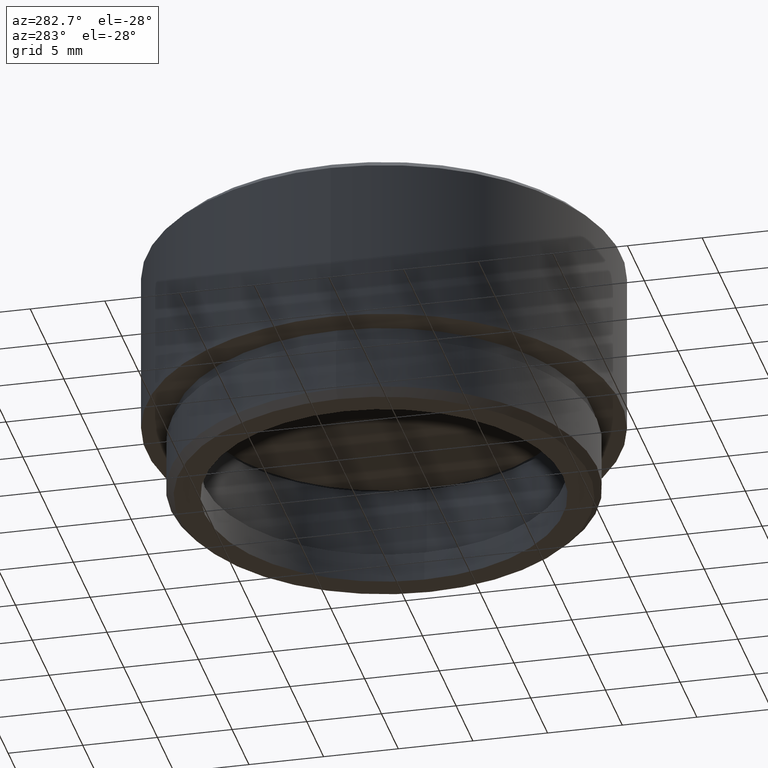
[diagram: clean part render]
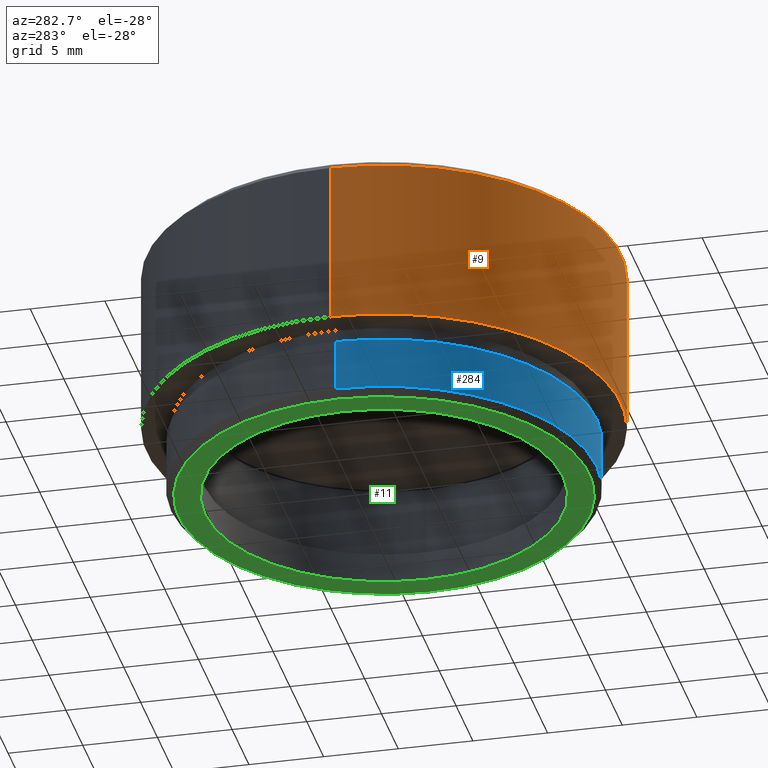
[diagram: same view with three faces highlighted in distinct colors, each labeled with its STEP entity id]
A machine part, auxiliary view with three faces highlighted in distinct colors.
Their STEP definitions:

[orange] entity #9 — the highlighted cylindrical surface (partial cylindrical patch) has radius 15.878 mm, axis along (-0, -0, -1).
#9 = ADVANCED_FACE ( 'NONE', ( #1155 ), #1298, .T. ) ;
#14 = CARTESIAN_POINT ( 'NONE',  ( 15.87800000000000011, 1.944494187686167431E-15, 16.50000000000000000 ) ) ;
#64 = VERTEX_POINT ( 'NONE', #1305 ) ;
#89 = CIRCLE ( 'NONE', #967, 15.87800000000000011 ) ;
#337 = CARTESIAN_POINT ( 'NONE',  ( -15.87800000000000011, 0.000000000000000000, 5.000000000000000000 ) ) ;
#341 = VERTEX_POINT ( 'NONE', #1650 ) ;
#372 = VERTEX_POINT ( 'NONE', #337 ) ;
#561 = ORIENTED_EDGE ( 'NONE', *, *, #984, .F. ) ;
#600 = VERTEX_POINT ( 'NONE', #956 ) ;
#609 = DIRECTION ( 'NONE',  ( -0.000000000000000000, -0.000000000000000000, -1.000000000000000000 ) ) ;
#648 = DIRECTION ( 'NONE',  ( -1.000000000000000000, 0.000000000000000000, 0.000000000000000000 ) ) ;
#672 = DIRECTION ( 'NONE',  ( -0.000000000000000000, -0.000000000000000000, -1.000000000000000000 ) ) ;
#699 = VECTOR ( 'NONE', #672, 1000.000000000000000 ) ;
#730 = EDGE_CURVE ( 'NONE', #341, #600, #1667, .T. ) ;
#738 = CARTESIAN_POINT ( 'NONE',  ( 0.000000000000000000, 0.000000000000000000, 16.50000000000000000 ) ) ;
#836 = ORIENTED_EDGE ( 'NONE', *, *, #1540, .T. ) ;
#878 = ORIENTED_EDGE ( 'NONE', *, *, #730, .T. ) ;
#919 = AXIS2_PLACEMENT_3D ( 'NONE', #1251, #1526, #1657 ) ;
#929 = AXIS2_PLACEMENT_3D ( 'NONE', #738, #609, #1141 ) ;
#956 = CARTESIAN_POINT ( 'NONE',  ( -15.87800000000000011, 0.000000000000000000, 15.99999999999999645 ) ) ;
#967 = AXIS2_PLACEMENT_3D ( 'NONE', #1287, #1028, #648 ) ;
#975 = DIRECTION ( 'NONE',  ( -0.000000000000000000, -0.000000000000000000, -1.000000000000000000 ) ) ;
#984 = EDGE_CURVE ( 'NONE', #64, #372, #89, .T. ) ;
#1028 = DIRECTION ( 'NONE',  ( 0.000000000000000000, 0.000000000000000000, -1.000000000000000000 ) ) ;
#1141 = DIRECTION ( 'NONE',  ( -1.000000000000000000, 0.000000000000000000, 0.000000000000000000 ) ) ;
#1148 = VECTOR ( 'NONE', #975, 1000.000000000000000 ) ;
#1155 = FACE_OUTER_BOUND ( 'NONE', #1163, .T. ) ;
#1163 = EDGE_LOOP ( 'NONE', ( #1492, #878, #836, #561 ) ) ;
#1230 = LINE ( 'NONE', #1624, #1148 ) ;
#1251 = CARTESIAN_POINT ( 'NONE',  ( 0.000000000000000000, 0.000000000000000000, 15.99999999999999645 ) ) ;
#1287 = CARTESIAN_POINT ( 'NONE',  ( 0.000000000000000000, 0.000000000000000000, 5.000000000000000000 ) ) ;
#1298 = CYLINDRICAL_SURFACE ( 'NONE', #929, 15.87800000000000011 ) ;
#1305 = CARTESIAN_POINT ( 'NONE',  ( 15.87800000000000011, 1.944494187686167431E-15, 5.000000000000000000 ) ) ;
#1312 = EDGE_CURVE ( 'NONE', #341, #64, #1333, .T. ) ;
#1333 = LINE ( 'NONE', #14, #699 ) ;
#1492 = ORIENTED_EDGE ( 'NONE', *, *, #1312, .F. ) ;
#1526 = DIRECTION ( 'NONE',  ( 0.000000000000000000, 0.000000000000000000, -1.000000000000000000 ) ) ;
#1540 = EDGE_CURVE ( 'NONE', #600, #372, #1230, .T. ) ;
#1624 = CARTESIAN_POINT ( 'NONE',  ( -15.87800000000000011, 0.000000000000000000, 16.50000000000000000 ) ) ;
#1650 = CARTESIAN_POINT ( 'NONE',  ( 15.87800000000000011, 1.944494187686167431E-15, 15.99999999999999645 ) ) ;
#1657 = DIRECTION ( 'NONE',  ( 1.000000000000000000, 0.000000000000000000, 0.000000000000000000 ) ) ;
#1667 = CIRCLE ( 'NONE', #919, 15.87800000000000011 ) ;

[blue] entity #284 — the highlighted cylindrical surface (partial cylindrical patch) has radius 14.25 mm, axis along (-0, -0, -1).
#28 = DIRECTION ( 'NONE',  ( -1.000000000000000000, 0.000000000000000000, 0.000000000000000000 ) ) ;
#63 = CYLINDRICAL_SURFACE ( 'NONE', #592, 14.25000000000000000 ) ;
#130 = DIRECTION ( 'NONE',  ( -1.000000000000000000, 0.000000000000000000, 0.000000000000000000 ) ) ;
#162 = VECTOR ( 'NONE', #1467, 1000.000000000000000 ) ;
#190 = CARTESIAN_POINT ( 'NONE',  ( 0.000000000000000000, 0.000000000000000000, 0.4999999999999970024 ) ) ;
#210 = LINE ( 'NONE', #879, #301 ) ;
#284 = ADVANCED_FACE ( 'NONE', ( #583 ), #63, .T. ) ;
#301 = VECTOR ( 'NONE', #611, 1000.000000000000000 ) ;
#312 = VERTEX_POINT ( 'NONE', #1381 ) ;
#313 = EDGE_CURVE ( 'NONE', #449, #1035, #1323, .T. ) ;
#355 = EDGE_LOOP ( 'NONE', ( #546, #870, #528, #1317 ) ) ;
#422 = DIRECTION ( 'NONE',  ( 1.000000000000000000, 0.000000000000000000, 0.000000000000000000 ) ) ;
#449 = VERTEX_POINT ( 'NONE', #1665 ) ;
#528 = ORIENTED_EDGE ( 'NONE', *, *, #1094, .T. ) ;
#546 = ORIENTED_EDGE ( 'NONE', *, *, #1243, .F. ) ;
#583 = FACE_OUTER_BOUND ( 'NONE', #355, .T. ) ;
#592 = AXIS2_PLACEMENT_3D ( 'NONE', #1364, #1216, #28 ) ;
#611 = DIRECTION ( 'NONE',  ( -0.000000000000000000, -0.000000000000000000, -1.000000000000000000 ) ) ;
#665 = CARTESIAN_POINT ( 'NONE',  ( 0.000000000000000000, 0.000000000000000000, 4.000000000000000000 ) ) ;
#676 = AXIS2_PLACEMENT_3D ( 'NONE', #665, #786, #130 ) ;
#786 = DIRECTION ( 'NONE',  ( 0.000000000000000000, 0.000000000000000000, -1.000000000000000000 ) ) ;
#788 = AXIS2_PLACEMENT_3D ( 'NONE', #190, #1607, #422 ) ;
#845 = CIRCLE ( 'NONE', #676, 14.25000000000000000 ) ;
#870 = ORIENTED_EDGE ( 'NONE', *, *, #1238, .T. ) ;
#879 = CARTESIAN_POINT ( 'NONE',  ( -14.25000000000000000, 0.000000000000000000, 5.000000000000000000 ) ) ;
#918 = VERTEX_POINT ( 'NONE', #1299 ) ;
#927 = CARTESIAN_POINT ( 'NONE',  ( 14.25000000000000000, 1.745121688784978228E-15, 5.000000000000000000 ) ) ;
#1035 = VERTEX_POINT ( 'NONE', #1306 ) ;
#1094 = EDGE_CURVE ( 'NONE', #918, #449, #210, .T. ) ;
#1216 = DIRECTION ( 'NONE',  ( -0.000000000000000000, -0.000000000000000000, -1.000000000000000000 ) ) ;
#1238 = EDGE_CURVE ( 'NONE', #312, #918, #845, .T. ) ;
#1243 = EDGE_CURVE ( 'NONE', #312, #1035, #1327, .T. ) ;
#1299 = CARTESIAN_POINT ( 'NONE',  ( -14.25000000000000000, 0.000000000000000000, 4.000000000000000000 ) ) ;
#1306 = CARTESIAN_POINT ( 'NONE',  ( 14.25000000000000000, 1.745121688784978228E-15, 0.4999999999999970024 ) ) ;
#1317 = ORIENTED_EDGE ( 'NONE', *, *, #313, .T. ) ;
#1323 = CIRCLE ( 'NONE', #788, 14.25000000000000000 ) ;
#1327 = LINE ( 'NONE', #927, #162 ) ;
#1364 = CARTESIAN_POINT ( 'NONE',  ( 0.000000000000000000, 0.000000000000000000, 5.000000000000000000 ) ) ;
#1381 = CARTESIAN_POINT ( 'NONE',  ( 14.25000000000000000, 1.745121688784978228E-15, 4.000000000000000000 ) ) ;
#1467 = DIRECTION ( 'NONE',  ( -0.000000000000000000, -0.000000000000000000, -1.000000000000000000 ) ) ;
#1607 = DIRECTION ( 'NONE',  ( 0.000000000000000000, 0.000000000000000000, 1.000000000000000000 ) ) ;
#1665 = CARTESIAN_POINT ( 'NONE',  ( -14.25000000000000000, 0.000000000000000000, 0.4999999999999970024 ) ) ;

[green] entity #11 — the highlighted planar face has unit normal (0, 0, 1).
#7 = VERTEX_POINT ( 'NONE', #998 ) ;
#11 = ADVANCED_FACE ( 'NONE', ( #877, #1679 ), #73, .F. ) ;
#62 = CIRCLE ( 'NONE', #463, 13.75000000000000533 ) ;
#73 = PLANE ( 'NONE',  #451 ) ;
#84 = CIRCLE ( 'NONE', #1271, 13.75000000000000533 ) ;
#88 = CARTESIAN_POINT ( 'NONE',  ( -12.00000000000000178, 0.000000000000000000, 0.000000000000000000 ) ) ;
#222 = CARTESIAN_POINT ( 'NONE',  ( 0.000000000000000000, 0.000000000000000000, 0.000000000000000000 ) ) ;
#225 = ORIENTED_EDGE ( 'NONE', *, *, #1669, .T. ) ;
#254 = VERTEX_POINT ( 'NONE', #570 ) ;
#353 = CARTESIAN_POINT ( 'NONE',  ( 0.000000000000000000, 0.000000000000000000, 0.000000000000000000 ) ) ;
#386 = DIRECTION ( 'NONE',  ( 1.000000000000000000, 0.000000000000000000, 0.000000000000000000 ) ) ;
#426 = ORIENTED_EDGE ( 'NONE', *, *, #1664, .T. ) ;
#451 = AXIS2_PLACEMENT_3D ( 'NONE', #885, #488, #593 ) ;
#463 = AXIS2_PLACEMENT_3D ( 'NONE', #353, #1543, #1006 ) ;
#479 = EDGE_LOOP ( 'NONE', ( #426, #225 ) ) ;
#488 = DIRECTION ( 'NONE',  ( 0.000000000000000000, 0.000000000000000000, 1.000000000000000000 ) ) ;
#516 = VERTEX_POINT ( 'NONE', #531 ) ;
#531 = CARTESIAN_POINT ( 'NONE',  ( -13.75000000000000533, 1.714505518806294835E-15, 0.000000000000000000 ) ) ;
#570 = CARTESIAN_POINT ( 'NONE',  ( 13.75000000000000533, 0.000000000000000000, 0.000000000000000000 ) ) ;
#593 = DIRECTION ( 'NONE',  ( 1.000000000000000000, 0.000000000000000000, -0.000000000000000000 ) ) ;
#594 = CARTESIAN_POINT ( 'NONE',  ( 0.000000000000000000, 0.000000000000000000, 0.000000000000000000 ) ) ;
#645 = DIRECTION ( 'NONE',  ( 0.000000000000000000, 0.000000000000000000, 1.000000000000000000 ) ) ;
#785 = CIRCLE ( 'NONE', #1002, 12.00000000000000178 ) ;
#840 = AXIS2_PLACEMENT_3D ( 'NONE', #1311, #645, #386 ) ;
#866 = EDGE_CURVE ( 'NONE', #516, #254, #62, .T. ) ;
#877 = FACE_OUTER_BOUND ( 'NONE', #1027, .T. ) ;
#885 = CARTESIAN_POINT ( 'NONE',  ( 0.000000000000000000, 0.000000000000000000, 0.000000000000000000 ) ) ;
#998 = CARTESIAN_POINT ( 'NONE',  ( 12.00000000000000178, 1.469576158976824144E-15, 0.000000000000000000 ) ) ;
#1002 = AXIS2_PLACEMENT_3D ( 'NONE', #222, #1566, #1548 ) ;
#1006 = DIRECTION ( 'NONE',  ( 1.000000000000000000, 0.000000000000000000, 0.000000000000000000 ) ) ;
#1027 = EDGE_LOOP ( 'NONE', ( #1534, #1357 ) ) ;
#1109 = EDGE_CURVE ( 'NONE', #254, #516, #84, .T. ) ;
#1145 = DIRECTION ( 'NONE',  ( -0.000000000000000000, -0.000000000000000000, -1.000000000000000000 ) ) ;
#1271 = AXIS2_PLACEMENT_3D ( 'NONE', #594, #1145, #1301 ) ;
#1301 = DIRECTION ( 'NONE',  ( 1.000000000000000000, 0.000000000000000000, 0.000000000000000000 ) ) ;
#1311 = CARTESIAN_POINT ( 'NONE',  ( 0.000000000000000000, 0.000000000000000000, 0.000000000000000000 ) ) ;
#1357 = ORIENTED_EDGE ( 'NONE', *, *, #866, .T. ) ;
#1534 = ORIENTED_EDGE ( 'NONE', *, *, #1109, .T. ) ;
#1543 = DIRECTION ( 'NONE',  ( -0.000000000000000000, -0.000000000000000000, -1.000000000000000000 ) ) ;
#1548 = DIRECTION ( 'NONE',  ( 1.000000000000000000, 0.000000000000000000, 0.000000000000000000 ) ) ;
#1566 = DIRECTION ( 'NONE',  ( 0.000000000000000000, 0.000000000000000000, 1.000000000000000000 ) ) ;
#1645 = VERTEX_POINT ( 'NONE', #88 ) ;
#1664 = EDGE_CURVE ( 'NONE', #1645, #7, #785, .T. ) ;
#1669 = EDGE_CURVE ( 'NONE', #7, #1645, #1674, .T. ) ;
#1674 = CIRCLE ( 'NONE', #840, 12.00000000000000178 ) ;
#1679 = FACE_BOUND ( 'NONE', #479, .T. ) ;